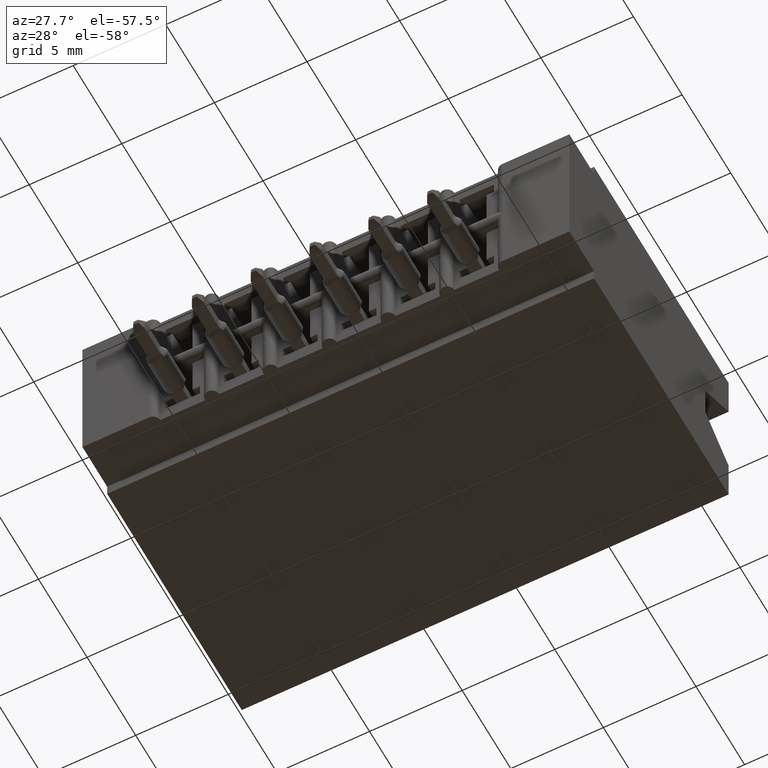
[diagram: clean part render]
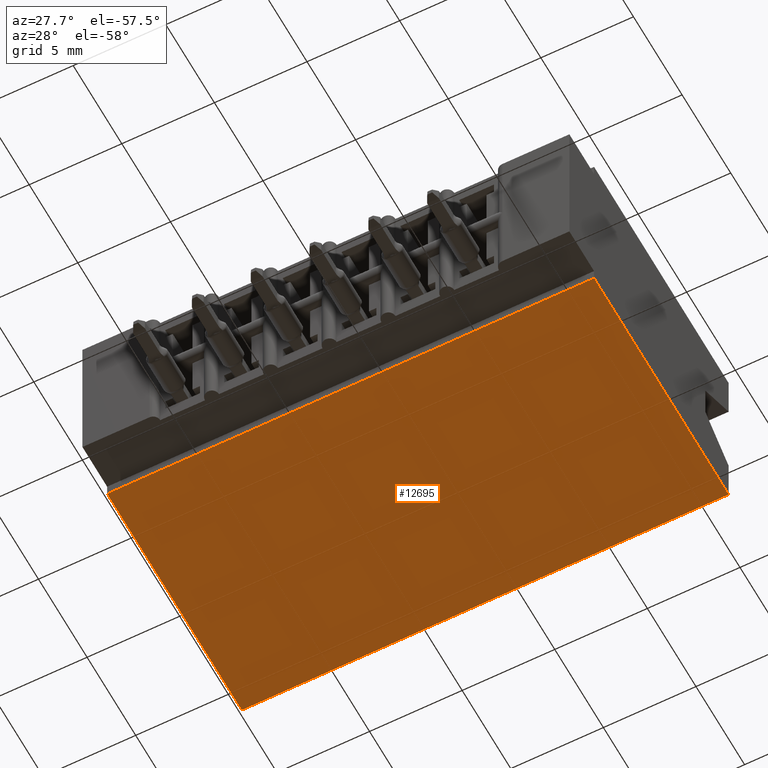
[diagram: same view with one face highlighted and labeled with its STEP entity id]
A machine part, auxiliary view. The second image highlights one B-rep face of the part: STEP entity #12695.
In plain terms, the highlighted planar face has unit normal (0, 0, 1).
Its self-contained STEP definition (entity closure, byte-faithful):
#328 = CARTESIAN_POINT ( 'NONE',  ( 1.034999999999999920, 0.6449999999999999067, -0.3900000000000000133 ) ) ;
#378 = EDGE_CURVE ( 'NONE', #1934, #14185, #6200, .T. ) ;
#406 = VERTEX_POINT ( 'NONE', #12404 ) ;
#1015 = DIRECTION ( 'NONE',  ( -1.000000000000000000, -0.0000000000000000000, -0.0000000000000000000 ) ) ;
#1499 = CARTESIAN_POINT ( 'NONE',  ( 0.0000000000000000000, 0.6449999999999999067, -0.3900000000000000133 ) ) ;
#1934 = VERTEX_POINT ( 'NONE', #10216 ) ;
#2096 = LINE ( 'NONE', #10839, #3269 ) ;
#2456 = PLANE ( 'NONE',  #12855 ) ;
#3184 = ORIENTED_EDGE ( 'NONE', *, *, #11783, .T. ) ;
#3269 = VECTOR ( 'NONE', #1015, 39.37007874015748143 ) ;
#4968 = ORIENTED_EDGE ( 'NONE', *, *, #14094, .T. ) ;
#6200 = LINE ( 'NONE', #13974, #8297 ) ;
#6299 = LINE ( 'NONE', #10630, #10789 ) ;
#6454 = ORIENTED_EDGE ( 'NONE', *, *, #378, .F. ) ;
#6796 = DIRECTION ( 'NONE',  ( 1.000000000000000000, 0.0000000000000000000, -0.0000000000000000000 ) ) ;
#7215 = EDGE_LOOP ( 'NONE', ( #3184, #4968, #9034, #6454 ) ) ;
#7768 = CARTESIAN_POINT ( 'NONE',  ( 0.0000000000000000000, 0.1000000000000000056, -0.3900000000000000133 ) ) ;
#7878 = CARTESIAN_POINT ( 'NONE',  ( 0.0000000000000000000, 0.6449999999999999067, -0.3900000000000000133 ) ) ;
#8153 = FACE_OUTER_BOUND ( 'NONE', #7215, .T. ) ;
#8297 = VECTOR ( 'NONE', #11533, 39.37007874015748143 ) ;
#9034 = ORIENTED_EDGE ( 'NONE', *, *, #11234, .F. ) ;
#9539 = DIRECTION ( 'NONE',  ( -0.0000000000000000000, -1.000000000000000000, -0.0000000000000000000 ) ) ;
#9874 = VECTOR ( 'NONE', #10271, 39.37007874015748143 ) ;
#10068 = VERTEX_POINT ( 'NONE', #7768 ) ;
#10138 = LINE ( 'NONE', #328, #9874 ) ;
#10216 = CARTESIAN_POINT ( 'NONE',  ( 1.034999999999999920, 0.6449999999999999067, -0.3900000000000000133 ) ) ;
#10271 = DIRECTION ( 'NONE',  ( -0.0000000000000000000, -1.000000000000000000, -0.0000000000000000000 ) ) ;
#10630 = CARTESIAN_POINT ( 'NONE',  ( 0.0000000000000000000, 0.6449999999999999067, -0.3900000000000000133 ) ) ;
#10789 = VECTOR ( 'NONE', #9539, 39.37007874015748143 ) ;
#10839 = CARTESIAN_POINT ( 'NONE',  ( 1.034999999999999920, 0.1000000000000000056, -0.3900000000000000133 ) ) ;
#11234 = EDGE_CURVE ( 'NONE', #14185, #10068, #6299, .T. ) ;
#11533 = DIRECTION ( 'NONE',  ( -1.000000000000000000, -0.0000000000000000000, -0.0000000000000000000 ) ) ;
#11783 = EDGE_CURVE ( 'NONE', #1934, #406, #10138, .T. ) ;
#12272 = DIRECTION ( 'NONE',  ( 0.0000000000000000000, 0.0000000000000000000, 1.000000000000000000 ) ) ;
#12404 = CARTESIAN_POINT ( 'NONE',  ( 1.034999999999999920, 0.1000000000000000056, -0.3900000000000000133 ) ) ;
#12695 = ADVANCED_FACE ( 'NONE', ( #8153 ), #2456, .F. ) ;
#12855 = AXIS2_PLACEMENT_3D ( 'NONE', #7878, #12272, #6796 ) ;
#13974 = CARTESIAN_POINT ( 'NONE',  ( 0.0000000000000000000, 0.6449999999999999067, -0.3900000000000000133 ) ) ;
#14094 = EDGE_CURVE ( 'NONE', #406, #10068, #2096, .T. ) ;
#14185 = VERTEX_POINT ( 'NONE', #1499 ) ;